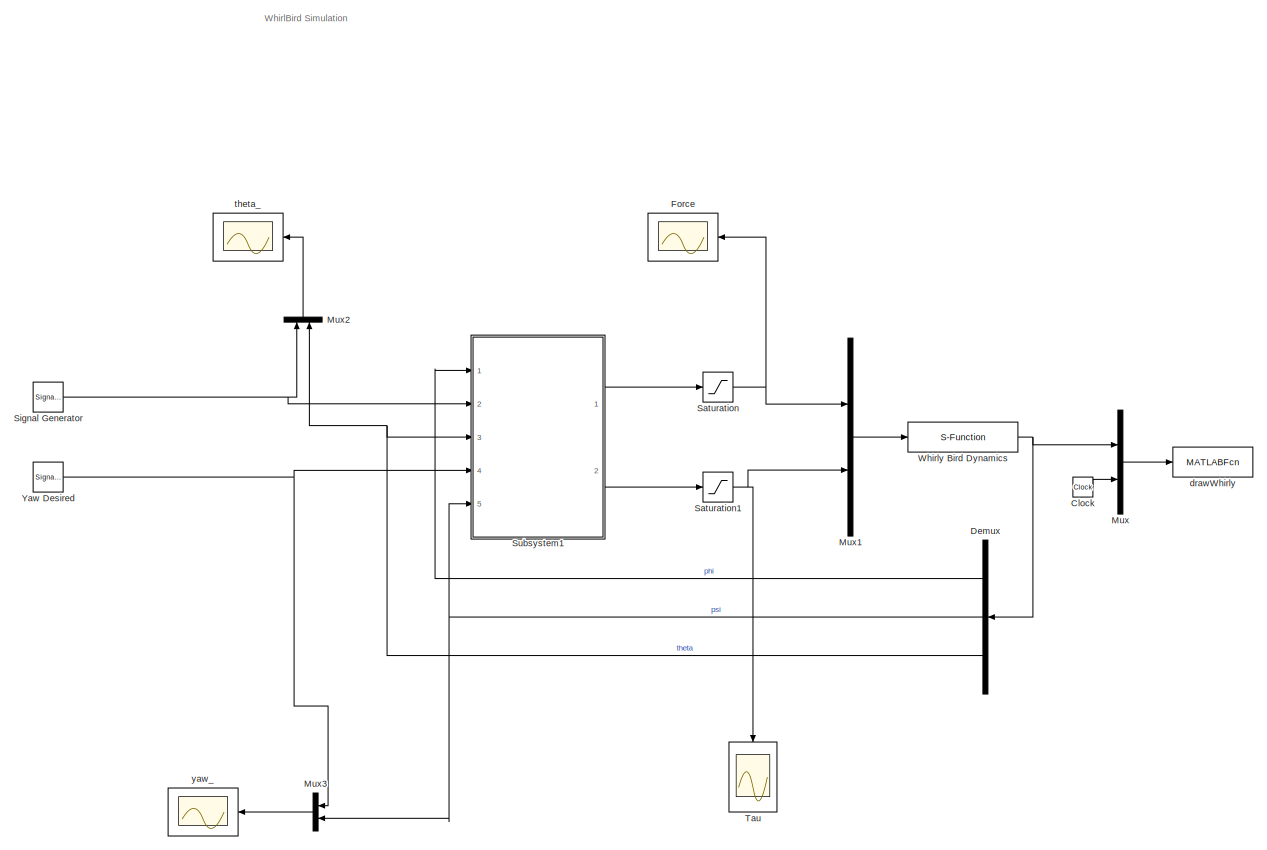
[diagram: root canvas - part 1/2, most of the canvas]
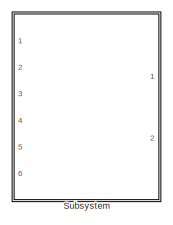
[diagram: root canvas - part 2/2, top left region]
MODEL slx_6c146a01f435
KIND model
CONFIG AbsTol = auto
CONFIG EnableMultiTasking = on
CONFIG FixedStep = auto
CONFIG InitFcn = param
CONFIG MaxStep = auto
CONFIG MinStep = auto
CONFIG RelTol = 1e-3
CONFIG SampleTimeConstraint = Unconstrained
CONFIG Solver = ode45
CONFIG SolverName = ode45
CONFIG StartTime = 0.0
CONFIG StopTime = 10000
BLOCK [Clock] Clock
BLOCK [Demux] Demux
  DisplayOption = bar
  Outputs = 3
  Ports = [1, 3]
BLOCK [Scope] Force
  NumInputPorts = 1
  Ports = [1]
  ScopeSpecificationString = Simulink.scopes.TimeScopeBlockCfg('CurrentConfiguration', extmgr.ConfigurationSet(extmgr.Configuration('Core','General UI',true),extmgr.Configuration('Core','Source UI',true),extmgr.Configuration('Sources','WiredSimulink',true),extmgr.Configuration('Visuals','Time Domain',true,'SerializedDisplays',{struct('MinYLimReal','1.71728','MaxYLimReal','7.32914','YLabelReal','','MinYLimMag','1.71728','MaxYL...<+1390ch>
BLOCK [Mux] Mux
  DisplayOption = bar
  Inputs = 2
  Ports = [2, 1]
BLOCK [Mux] Mux1
  DisplayOption = bar
  Inputs = 2
  Ports = [2, 1]
BLOCK [Mux] Mux2
  DisplayOption = bar
  Inputs = 2
  Ports = [2, 1]
BLOCK [Mux] Mux3
  DisplayOption = bar
  Inputs = 2
  Ports = [2, 1]
BLOCK [Saturate] Saturation
  InputPortMap = u0
  LowerLimit = 0
  Ports = [1, 1]
  UpperLimit = P.Fmax
BLOCK [Saturate] Saturation1
  InputPortMap = u0
  LowerLimit = -P.Taumax
  Ports = [1, 1]
  UpperLimit = P.Taumax
BLOCK [SignalGenerator] Signal Generator
  Amplitude = .2618*2
  Frequency = .02
  Ports = [0, 1]
  WaveForm = square
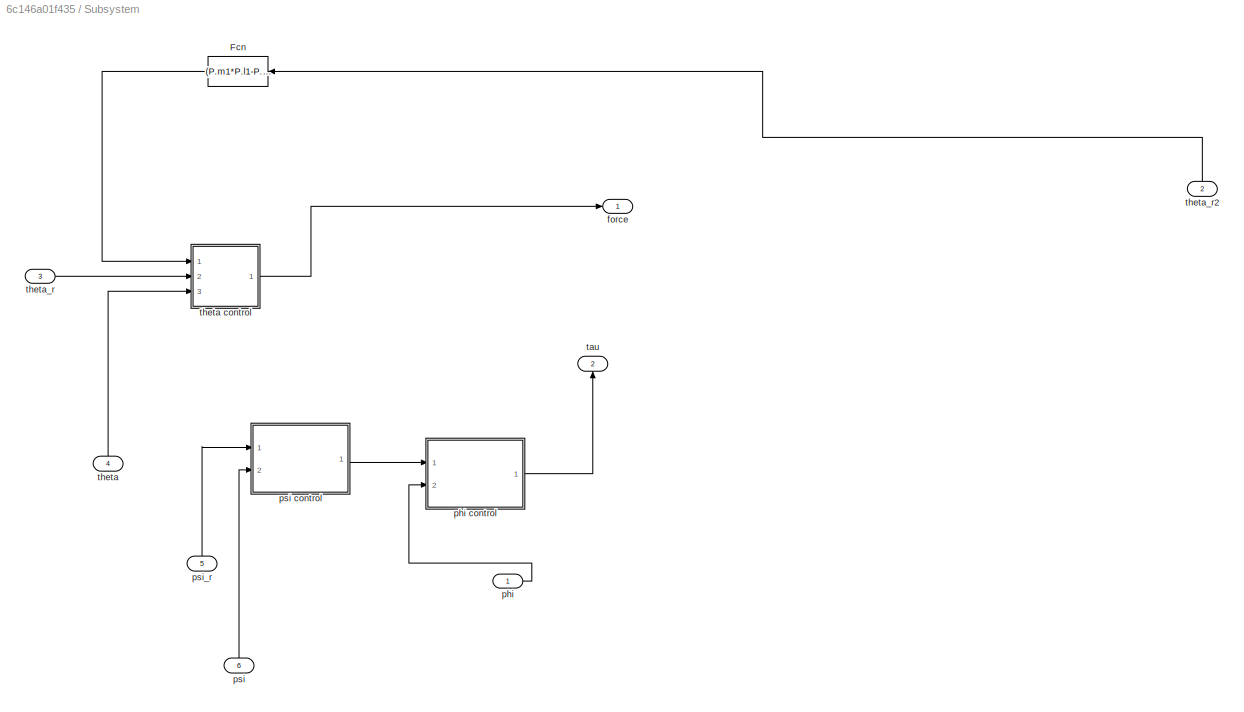
BLOCK [SubSystem] Subsystem
  Ports = [6, 2]
  RequestExecContextInheritance = off
  Variant = off
BLOCK [Fcn] Subsystem/Fcn
  Expr = (P.m1*P.l1-P.m2*P.l2)*cos(u)*(P.g/P.l1)
BLOCK [Outport] Subsystem/force
  IconDisplay = Port number
BLOCK [Inport] Subsystem/phi
  IconDisplay = Port number
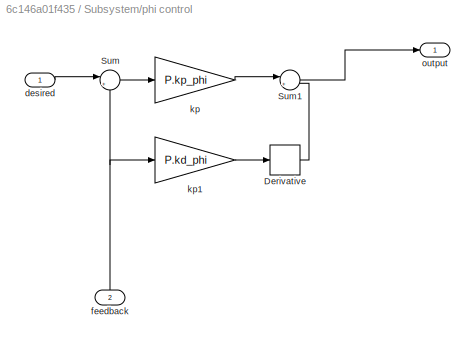
BLOCK [SubSystem] Subsystem/phi control
  Ports = [2, 1]
  RequestExecContextInheritance = off
  Variant = off
BLOCK [Derivative] Subsystem/phi control/Derivative
BLOCK [Sum] Subsystem/phi control/Sum
  IconShape = round
  InputSameDT = off
  Inputs = |+-
  OutDataTypeStr = Inherit: Inherit via internal rule
  Ports = [2, 1]
  SaturateOnIntegerOverflow = off
BLOCK [Sum] Subsystem/phi control/Sum1
  IconShape = round
  InputSameDT = off
  Inputs = |+-
  OutDataTypeStr = Inherit: Inherit via internal rule
  Ports = [2, 1]
  SaturateOnIntegerOverflow = off
BLOCK [Inport] Subsystem/phi control/desired
  IconDisplay = Port number
BLOCK [Inport] Subsystem/phi control/feedback
  IconDisplay = Port number
  Port = 2
BLOCK [Gain] Subsystem/phi control/kp
  Gain = P.kp_phi
  OutDataTypeStr = Inherit: Inherit via internal rule
  ParamDataTypeStr = Inherit: Inherit via internal rule
  SaturateOnIntegerOverflow = off
BLOCK [Gain] Subsystem/phi control/kp1
  Gain = P.kd_phi
  OutDataTypeStr = Inherit: Inherit via internal rule
  ParamDataTypeStr = Inherit: Inherit via internal rule
  SaturateOnIntegerOverflow = off
BLOCK [Outport] Subsystem/phi control/output
  IconDisplay = Port number
BLOCK [Inport] Subsystem/psi
  IconDisplay = Port number
  Port = 6
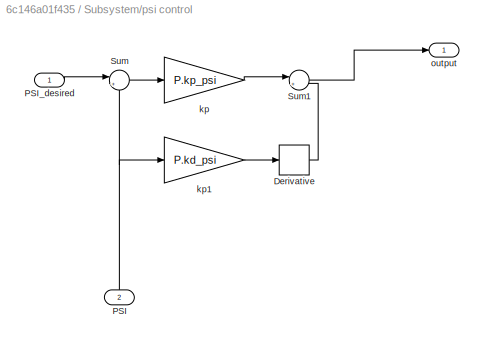
BLOCK [SubSystem] Subsystem/psi control
  Ports = [2, 1]
  RequestExecContextInheritance = off
  Variant = off
BLOCK [Derivative] Subsystem/psi control/Derivative
BLOCK [Inport] Subsystem/psi control/PSI
  IconDisplay = Port number
  Port = 2
BLOCK [Inport] Subsystem/psi control/PSI_desired
  IconDisplay = Port number
BLOCK [Sum] Subsystem/psi control/Sum
  IconShape = round
  InputSameDT = off
  Inputs = |+-
  OutDataTypeStr = Inherit: Inherit via internal rule
  Ports = [2, 1]
  SaturateOnIntegerOverflow = off
BLOCK [Sum] Subsystem/psi control/Sum1
  IconShape = round
  InputSameDT = off
  Inputs = |+-
  OutDataTypeStr = Inherit: Inherit via internal rule
  Ports = [2, 1]
  SaturateOnIntegerOverflow = off
BLOCK [Gain] Subsystem/psi control/kp
  Gain = P.kp_psi
  OutDataTypeStr = Inherit: Inherit via internal rule
  ParamDataTypeStr = Inherit: Inherit via internal rule
  SaturateOnIntegerOverflow = off
BLOCK [Gain] Subsystem/psi control/kp1
  Gain = P.kd_psi
  OutDataTypeStr = Inherit: Inherit via internal rule
  ParamDataTypeStr = Inherit: Inherit via internal rule
  SaturateOnIntegerOverflow = off
BLOCK [Outport] Subsystem/psi control/output
  IconDisplay = Port number
BLOCK [Inport] Subsystem/psi_r
  IconDisplay = Port number
  Port = 5
BLOCK [Outport] Subsystem/tau
  IconDisplay = Port number
  Port = 2
BLOCK [Inport] Subsystem/theta
  IconDisplay = Port number
  Port = 4
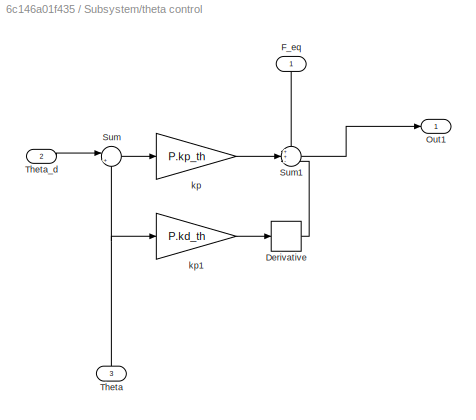
BLOCK [SubSystem] Subsystem/theta control
  Ports = [3, 1]
  RequestExecContextInheritance = off
  Variant = off
BLOCK [Derivative] Subsystem/theta control/Derivative
BLOCK [Inport] Subsystem/theta control/F_eq
  IconDisplay = Port number
BLOCK [Outport] Subsystem/theta control/Out1
  IconDisplay = Port number
BLOCK [Sum] Subsystem/theta control/Sum
  IconShape = round
  InputSameDT = off
  Inputs = |+-
  OutDataTypeStr = Inherit: Inherit via internal rule
  Ports = [2, 1]
  SaturateOnIntegerOverflow = off
BLOCK [Sum] Subsystem/theta control/Sum1
  IconShape = round
  InputSameDT = off
  Inputs = ++-
  OutDataTypeStr = Inherit: Inherit via internal rule
  Ports = [3, 1]
  SaturateOnIntegerOverflow = off
BLOCK [Inport] Subsystem/theta control/Theta
  IconDisplay = Port number
  Port = 3
BLOCK [Inport] Subsystem/theta control/Theta_d
  IconDisplay = Port number
  Port = 2
BLOCK [Gain] Subsystem/theta control/kp
  Gain = P.kp_th
  OutDataTypeStr = Inherit: Inherit via internal rule
  ParamDataTypeStr = Inherit: Inherit via internal rule
  SaturateOnIntegerOverflow = off
BLOCK [Gain] Subsystem/theta control/kp1
  Gain = P.kd_th
  OutDataTypeStr = Inherit: Inherit via internal rule
  ParamDataTypeStr = Inherit: Inherit via internal rule
  SaturateOnIntegerOverflow = off
BLOCK [Inport] Subsystem/theta_r
  IconDisplay = Port number
  Port = 3
BLOCK [Inport] Subsystem/theta_r2
  IconDisplay = Port number
  Port = 2
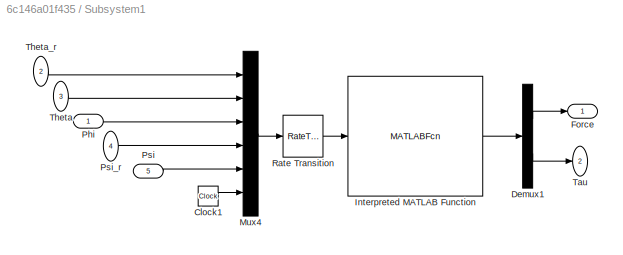
BLOCK [SubSystem] Subsystem1
  Ports = [5, 2]
  RequestExecContextInheritance = off
  Variant = off
BLOCK [Clock] Subsystem1/Clock1
BLOCK [Demux] Subsystem1/Demux1
  DisplayOption = bar
  Outputs = 2
  Ports = [1, 2]
BLOCK [Outport] Subsystem1/Force
  IconDisplay = Port number
BLOCK [MATLABFcn] Subsystem1/Interpreted MATLAB Function
  MATLABFcn = whirly_ctrl(u,P)
  OutputDimensions = 2
  Ports = [1, 1]
BLOCK [Mux] Subsystem1/Mux4
  DisplayOption = bar
  Inputs = 6
  Ports = [6, 1]
BLOCK [Inport] Subsystem1/Phi
  IconDisplay = Port number
BLOCK [Inport] Subsystem1/Psi
  IconDisplay = Port number
  Port = 5
BLOCK [Inport] Subsystem1/Psi_r
  IconDisplay = Port number
  Port = 4
BLOCK [RateTransition] Subsystem1/Rate Transition
  OutPortSampleTime = P.Ts
BLOCK [Outport] Subsystem1/Tau
  IconDisplay = Port number
  Port = 2
BLOCK [Inport] Subsystem1/Theta
  IconDisplay = Port number
  Port = 3
BLOCK [Inport] Subsystem1/Theta_r
  IconDisplay = Port number
  Port = 2
BLOCK [Scope] Tau
  NumInputPorts = 1
  Ports = [1]
  ScopeSpecificationString = Simulink.scopes.TimeScopeBlockCfg('CurrentConfiguration', extmgr.ConfigurationSet(extmgr.Configuration('Core','General UI',true),extmgr.Configuration('Core','Source UI',true),extmgr.Configuration('Sources','WiredSimulink',true,'DataLoggingVariableName','ScopeData1'),extmgr.Configuration('Visuals','Time Domain',true,'SerializedDisplays',{struct('MinYLimReal','-0.11885','MaxYLimReal','0.11885','YLab...<+1432ch>
BLOCK [S-Function] Whirly Bird Dynamics
  EnableBusSupport = off
  FunctionName = Whirly_dynamics
  Parameters = P
  Ports = [1, 1]
  SFcnIsStateOwnerBlock = off
  SFunctionDeploymentMode = off
BLOCK [SignalGenerator] Yaw Desired
  Amplitude = .2618*2
  Frequency = .02
  Ports = [0, 1]
  WaveForm = square
BLOCK [MATLABFcn] drawWhirly
  MATLABFcn = drawWhirly(u)
  OutputDimensions = 0
  Ports = [1]
  SampleTime = 0.1
BLOCK [Scope] theta_
  NumInputPorts = 1
  Ports = [1]
  ScopeSpecificationString = Simulink.scopes.TimeScopeBlockCfg('CurrentConfiguration', extmgr.ConfigurationSet(extmgr.Configuration('Core','General UI',true),extmgr.Configuration('Core','Source UI',true),extmgr.Configuration('Sources','WiredSimulink',true,'DataLoggingVariableName','ScopeData1'),extmgr.Configuration('Visuals','Time Domain',true,'SerializedDisplays',{struct('MinYLimReal','-0.69611','MaxYLimReal','0.69208','YLab...<+1432ch>
BLOCK [Scope] yaw_
  NumInputPorts = 1
  Ports = [1]
  ScopeSpecificationString = Simulink.scopes.TimeScopeBlockCfg('CurrentConfiguration', extmgr.ConfigurationSet(extmgr.Configuration('Core','General UI',true),extmgr.Configuration('Core','Source UI',true),extmgr.Configuration('Sources','WiredSimulink',true,'DataLoggingVariableName','ScopeData2'),extmgr.Configuration('Visuals','Time Domain',true,'SerializedDisplays',{struct('MinYLimReal','-0.65746','MaxYLimReal','0.67477','YLab...<+1431ch>
ANNOTATION (root): WhirlBird Simulation
LINE Clock:1 -> Mux:2
LINE Demux:1 -> Subsystem1:1
NET Demux:2 -> Mux3:2, Subsystem1:5
NET Demux:3 -> Mux2:2, Subsystem1:3
LINE Mux1:1 -> Whirly Bird Dynamics:1
LINE Mux2:1 -> theta_:1
LINE Mux3:1 -> yaw_:1
LINE Mux:1 -> drawWhirly:1
NET Saturation1:1 -> Mux1:2, Tau:1
NET Saturation:1 -> Force:1, Mux1:1
NET Signal Generator:1 -> Mux2:1, Subsystem1:2
LINE Subsystem/Fcn:1 -> Subsystem/theta control:1
LINE Subsystem/phi control/Derivative:1 -> Subsystem/phi control/Sum1:2
LINE Subsystem/phi control/Sum1:1 -> Subsystem/phi control/output:1
LINE Subsystem/phi control/Sum:1 -> Subsystem/phi control/kp:1
LINE Subsystem/phi control/desired:1 -> Subsystem/phi control/Sum:1
NET Subsystem/phi control/feedback:1 -> Subsystem/phi control/Sum:2, Subsystem/phi control/kp1:1
LINE Subsystem/phi control/kp1:1 -> Subsystem/phi control/Derivative:1
LINE Subsystem/phi control/kp:1 -> Subsystem/phi control/Sum1:1
LINE Subsystem/phi control:1 -> Subsystem/tau:1
LINE Subsystem/phi:1 -> Subsystem/phi control:2
LINE Subsystem/psi control/Derivative:1 -> Subsystem/psi control/Sum1:2
NET Subsystem/psi control/PSI:1 -> Subsystem/psi control/Sum:2, Subsystem/psi control/kp1:1
LINE Subsystem/psi control/PSI_desired:1 -> Subsystem/psi control/Sum:1
LINE Subsystem/psi control/Sum1:1 -> Subsystem/psi control/output:1
LINE Subsystem/psi control/Sum:1 -> Subsystem/psi control/kp:1
LINE Subsystem/psi control/kp1:1 -> Subsystem/psi control/Derivative:1
LINE Subsystem/psi control/kp:1 -> Subsystem/psi control/Sum1:1
LINE Subsystem/psi control:1 -> Subsystem/phi control:1
LINE Subsystem/psi:1 -> Subsystem/psi control:2
LINE Subsystem/psi_r:1 -> Subsystem/psi control:1
LINE Subsystem/theta control/Derivative:1 -> Subsystem/theta control/Sum1:3
LINE Subsystem/theta control/F_eq:1 -> Subsystem/theta control/Sum1:1
LINE Subsystem/theta control/Sum1:1 -> Subsystem/theta control/Out1:1
LINE Subsystem/theta control/Sum:1 -> Subsystem/theta control/kp:1
NET Subsystem/theta control/Theta:1 -> Subsystem/theta control/Sum:2, Subsystem/theta control/kp1:1
LINE Subsystem/theta control/Theta_d:1 -> Subsystem/theta control/Sum:1
LINE Subsystem/theta control/kp1:1 -> Subsystem/theta control/Derivative:1
LINE Subsystem/theta control/kp:1 -> Subsystem/theta control/Sum1:2
LINE Subsystem/theta control:1 -> Subsystem/force:1
LINE Subsystem/theta:1 -> Subsystem/theta control:3
LINE Subsystem/theta_r2:1 -> Subsystem/Fcn:1
LINE Subsystem/theta_r:1 -> Subsystem/theta control:2
LINE Subsystem1/Clock1:1 -> Subsystem1/Mux4:6
LINE Subsystem1/Demux1:1 -> Subsystem1/Force:1
LINE Subsystem1/Demux1:2 -> Subsystem1/Tau:1
LINE Subsystem1/Interpreted MATLAB Function:1 -> Subsystem1/Demux1:1
LINE Subsystem1/Mux4:1 -> Subsystem1/Rate Transition:1
LINE Subsystem1/Phi:1 -> Subsystem1/Mux4:3
LINE Subsystem1/Psi:1 -> Subsystem1/Mux4:5
LINE Subsystem1/Psi_r:1 -> Subsystem1/Mux4:4
LINE Subsystem1/Rate Transition:1 -> Subsystem1/Interpreted MATLAB Function:1
LINE Subsystem1/Theta:1 -> Subsystem1/Mux4:2
LINE Subsystem1/Theta_r:1 -> Subsystem1/Mux4:1
LINE Subsystem1:1 -> Saturation:1
LINE Subsystem1:2 -> Saturation1:1
NET Whirly Bird Dynamics:1 -> Demux:1, Mux:1
NET Yaw Desired:1 -> Mux3:1, Subsystem1:4
note: NET lines group one-source signal fan-out (src -> all destinations, sorted); 1:1 wires keep LINE
